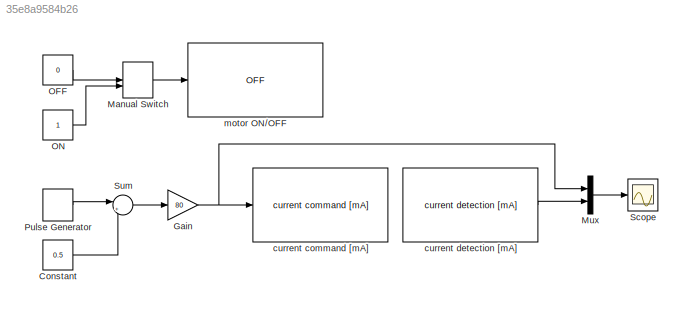
MODEL slx_35e8a9584b26
KIND model
CONFIG AbsTol = auto
CONFIG EnableMultiTasking = on
CONFIG FixedStep = 0.005
CONFIG MaxStep = auto
CONFIG MinStep = auto
CONFIG RelTol = 1e-3
CONFIG SampleTimeConstraint = Unconstrained
CONFIG SolverName = ode1
CONFIG StartTime = 0.0
CONFIG StopTime = inf
BLOCK [Constant] Constant
  Value = 0.5
BLOCK [Gain] Gain
  Gain = 80
BLOCK [ManualSwitch] Manual Switch
BLOCK [Mux] Mux
  DisplayOption = bar
  Inputs = 2
BLOCK [Constant] OFF
  Value = 0
BLOCK [Constant] ON
BLOCK [DiscretePulseGenerator] Pulse Generator
  NameLocation = top
  Period = 4
  PhaseDelay = 1
  PulseType = Time based
  PulseWidth = 50
BLOCK [Scope] Scope
  Floating = off
  NumInputPorts = 1
  ScopeSpecificationString = Simulink.scopes.TimeScopeBlockCfg('CurrentConfiguration', extmgr.ConfigurationSet(extmgr.Configuration('Core','General UI',true),extmgr.Configuration('Core','Source UI',true),extmgr.Configuration('Sources','WiredSimulink',true),extmgr.Configuration('Visuals','Time Domain',true,'SerializedDisplays',{struct('MinYLimReal','-80','MaxYLimReal','80','YLabelReal','','MinYLimMag','0','MaxYLimMag','10','Le...<+2363ch>
BLOCK [Sum] Sum
  Inputs = |+-
BLOCK [Reference] current command [mA]  REF=roller485lib/I2C Write/current command [mA]  (lib defined in slx_9f537789314b)
  SourceBlock = roller485lib/I2C Write/current command [mA]
  SourceProductName = Roller485 Library
  SourceType = current command [A]
BLOCK [Reference] current detection [mA]  REF=roller485lib/I2C Read/current detection [mA]  (lib defined in slx_9f537789314b)
  SourceBlock = roller485lib/I2C Read/current detection [mA]
  SourceProductName = Roller485 Library
BLOCK [Reference] motor ON//OFF  REF=roller485lib/motor ON//OFF  (lib defined in slx_9f537789314b)
  SourceBlock = roller485lib/motor ON//OFF
  SourceProductName = Roller485 Library
LINE Constant:1 -> Sum:2
NET Gain:1 -> Mux:1, current command [mA]:1
LINE Manual Switch:1 -> motor ON//OFF:1
LINE Mux:1 -> Scope:1
LINE OFF:1 -> Manual Switch:1
LINE ON:1 -> Manual Switch:2
LINE Pulse Generator:1 -> Sum:1
LINE Sum:1 -> Gain:1
LINE current detection [mA]:1 -> Mux:2
note: NET lines group one-source signal fan-out (src -> all destinations, sorted); 1:1 wires keep LINE
